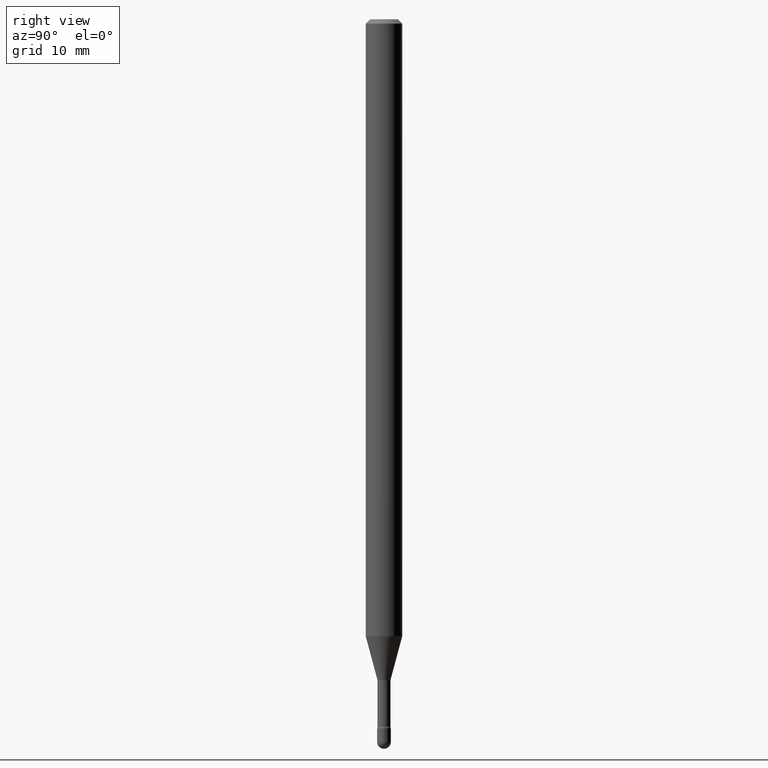
[diagram: clean part render]
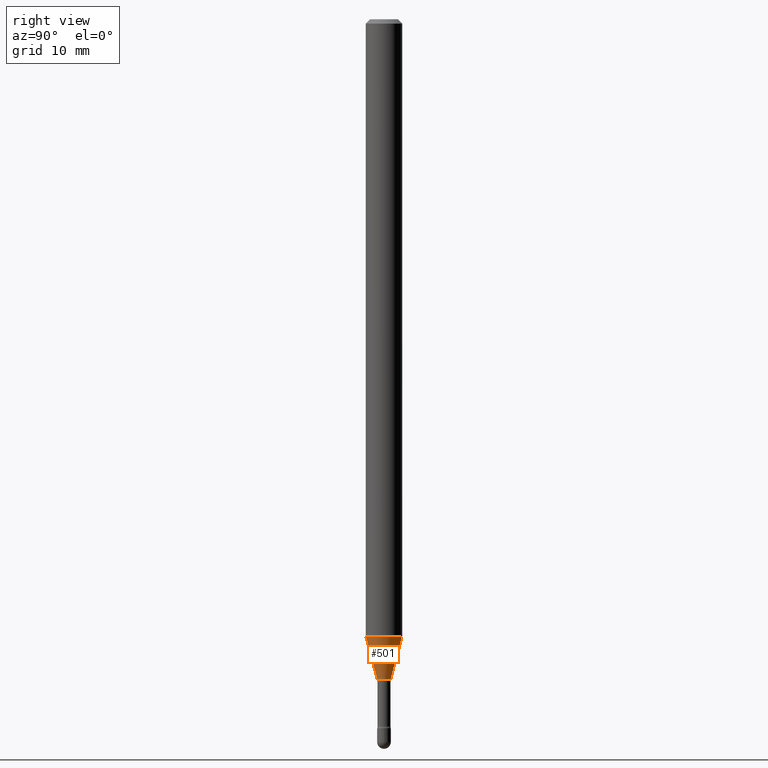
[diagram: same view with one face highlighted and labeled with its STEP entity id]
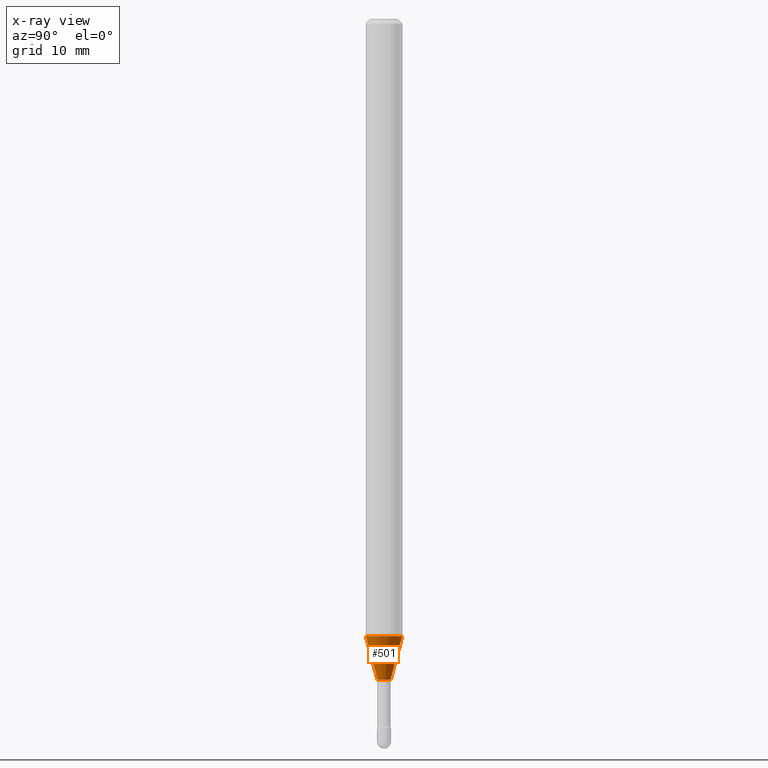
[diagram: x-ray of the same camera — body ghosted, the highlighted face saturated]
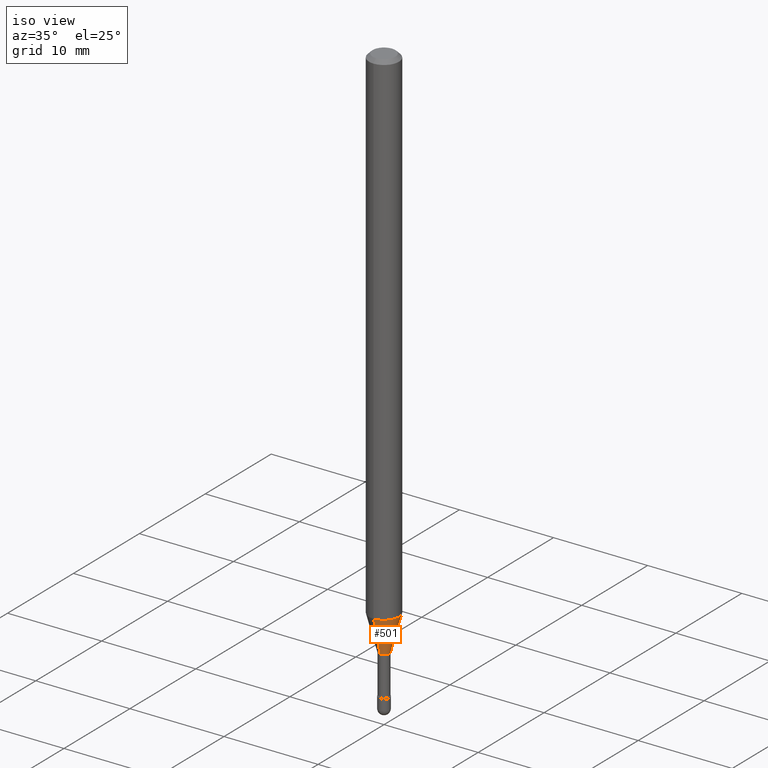
[diagram: same view with one face highlighted and labeled with its STEP entity id]
A machine part, right view. The second image highlights one B-rep face of the part: STEP entity #501.
The next image is the same camera in x-ray: the body ghosted, the highlighted face saturated — about 0% of this face is hidden behind the body in this view.
A second angle (iso view) of the same face is appended — the face is thin or edge-on in the first view.
In plain terms, the highlighted conical surface has half-angle 15 deg.
Its self-contained STEP definition (entity closure, byte-faithful):
#5 = VECTOR ( 'NONE', #119, 39.37007874015749564 ) ;
#53 = CARTESIAN_POINT ( 'NONE',  ( 3.023754139721258091E-16, 0.02261111260565609044, -2.263092501787272948 ) ) ;
#60 = VERTEX_POINT ( 'NONE', #53 ) ;
#64 = EDGE_LOOP ( 'NONE', ( #113, #347, #340, #132 ) ) ;
#68 = CARTESIAN_POINT ( 'NONE',  ( 5.534294962783350843E-29, -7.901584126787359375E-15, -2.263092501787272948 ) ) ;
#91 = EDGE_CURVE ( 'NONE', #60, #155, #448, .T. ) ;
#111 = DIRECTION ( 'NONE',  ( -2.445456806742390166E-29, 3.491498522728124281E-15, 1.000000000000000000 ) ) ;
#113 = ORIENTED_EDGE ( 'NONE', *, *, #359, .T. ) ;
#119 = DIRECTION ( 'NONE',  ( -1.807323732225328562E-15, -0.2588190451025179639, 0.9659258262890689783 ) ) ;
#122 = DIRECTION ( 'NONE',  ( -2.445456806742390166E-29, 3.491498522728124281E-15, 1.000000000000000000 ) ) ;
#131 = DIRECTION ( 'NONE',  ( -2.445456806742390166E-29, 3.491498522728124281E-15, 1.000000000000000000 ) ) ;
#132 = ORIENTED_EDGE ( 'NONE', *, *, #355, .F. ) ;
#137 = FACE_OUTER_BOUND ( 'NONE', #64, .T. ) ;
#155 = VERTEX_POINT ( 'NONE', #545 ) ;
#157 = DIRECTION ( 'NONE',  ( -6.982962677686265922E-15, -1.000000000000000000, 0.000000000000000000 ) ) ;
#172 = CARTESIAN_POINT ( 'NONE',  ( 5.170246277632214068E-29, -7.381813978771733326E-15, -2.114225147374217961 ) ) ;
#176 = CONICAL_SURFACE ( 'NONE', #192, 0.02261111260566398690, 0.2617993877991501295 ) ;
#192 = AXIS2_PLACEMENT_3D ( 'NONE', #305, #122, #414 ) ;
#199 = CIRCLE ( 'NONE', #522, 0.06250000000000000000 ) ;
#203 = CARTESIAN_POINT ( 'NONE',  ( -4.364351673553400976E-16, -0.06250000000000741074, -2.114225147374217517 ) ) ;
#282 = EDGE_CURVE ( 'NONE', #328, #155, #199, .T. ) ;
#294 = CARTESIAN_POINT ( 'NONE',  ( 1.606616180941370852E-16, 0.02261111260565608697, -2.263092501787272948 ) ) ;
#305 = CARTESIAN_POINT ( 'NONE',  ( 5.534294962783350843E-29, -7.901584126787359375E-15, -2.263092501787272948 ) ) ;
#328 = VERTEX_POINT ( 'NONE', #203 ) ;
#335 = CIRCLE ( 'NONE', #404, 0.02261111260566398690 ) ;
#340 = ORIENTED_EDGE ( 'NONE', *, *, #282, .F. ) ;
#347 = ORIENTED_EDGE ( 'NONE', *, *, #91, .T. ) ;
#349 = DIRECTION ( 'NONE',  ( 1.839019923739599526E-15, 0.2588190451025248473, 0.9659258262890673130 ) ) ;
#355 = EDGE_CURVE ( 'NONE', #381, #328, #399, .T. ) ;
#359 = EDGE_CURVE ( 'NONE', #381, #60, #335, .T. ) ;
#381 = VERTEX_POINT ( 'NONE', #444 ) ;
#399 = LINE ( 'NONE', #510, #5 ) ;
#404 = AXIS2_PLACEMENT_3D ( 'NONE', #68, #111, #157 ) ;
#414 = DIRECTION ( 'NONE',  ( -6.982962677686265922E-15, -1.000000000000000000, 0.000000000000000000 ) ) ;
#419 = DIRECTION ( 'NONE',  ( -6.982962677686265922E-15, -1.000000000000000000, 4.370956789862821150E-15 ) ) ;
#444 = CARTESIAN_POINT ( 'NONE',  ( -1.578925554262577325E-16, -0.02261111260567189030, -2.263092501787272948 ) ) ;
#448 = LINE ( 'NONE', #294, #542 ) ;
#501 = ADVANCED_FACE ( 'NONE', ( #137 ), #176, .T. ) ;
#510 = CARTESIAN_POINT ( 'NONE',  ( -1.578925554262577325E-16, -0.02261111260567189030, -2.263092501787272948 ) ) ;
#522 = AXIS2_PLACEMENT_3D ( 'NONE', #172, #131, #419 ) ;
#542 = VECTOR ( 'NONE', #349, 39.37007874015747433 ) ;
#545 = CARTESIAN_POINT ( 'NONE',  ( 4.440892098501140893E-16, 0.06249999999999258926, -2.114225147374217961 ) ) ;